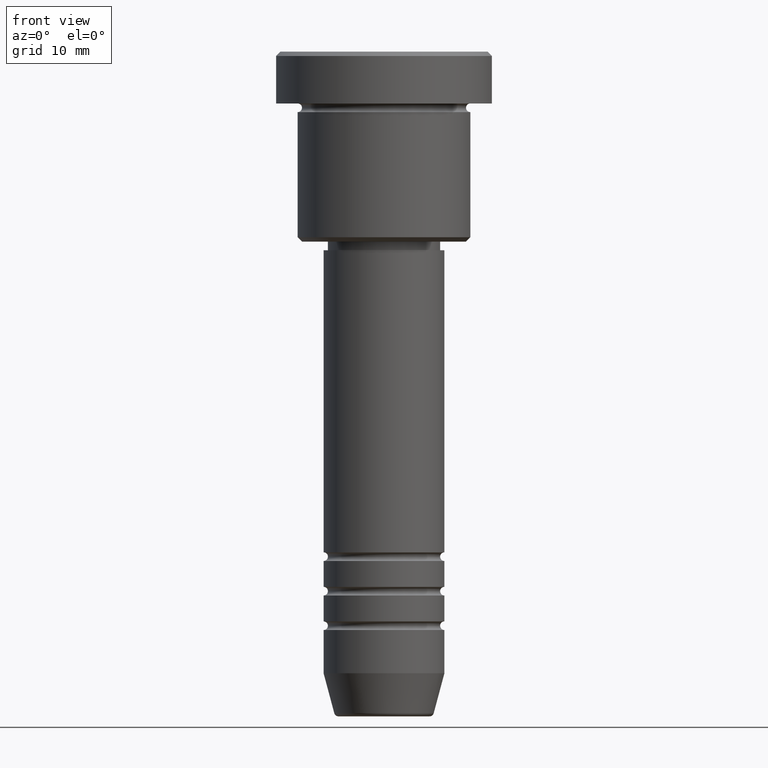
[diagram: clean part render]
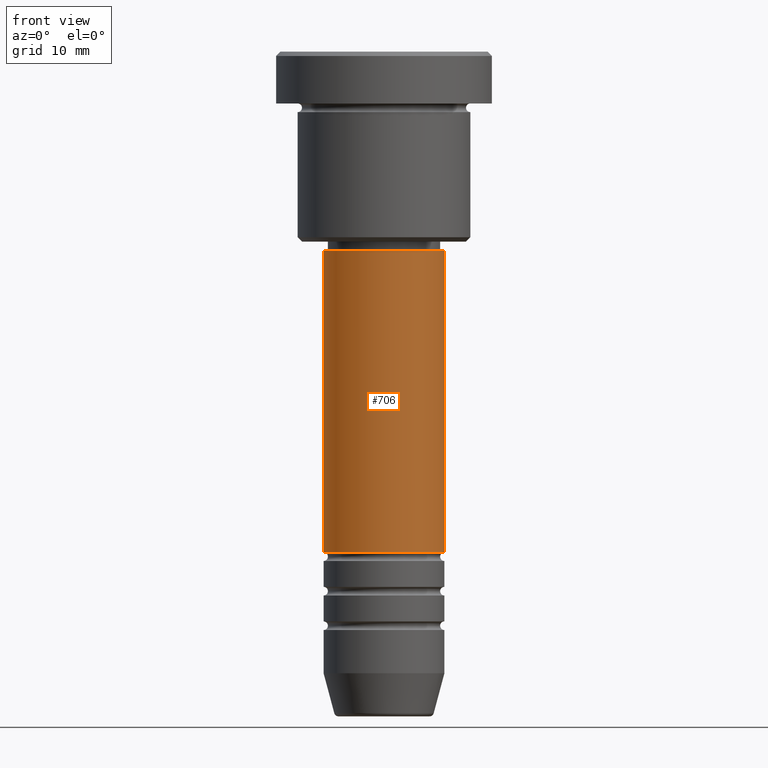
[diagram: same view with one face highlighted and labeled with its STEP entity id]
A machine part, front view. The second image highlights one B-rep face of the part: STEP entity #706.
In plain terms, the highlighted cylindrical surface (partial cylindrical patch) has radius 7 mm, axis along (-0, -0, 1).
Its self-contained STEP definition (entity closure, byte-faithful):
#1 = CARTESIAN_POINT ( 'NONE',  ( 7.000000000000000888, 0.000000000000000000, 0.000000000000000000 ) ) ;
#40 = DIRECTION ( 'NONE',  ( -0.000000000000000000, -0.000000000000000000, 1.000000000000000000 ) ) ;
#101 = DIRECTION ( 'NONE',  ( 1.000000000000000000, 0.000000000000000000, 0.000000000000000000 ) ) ;
#121 = VERTEX_POINT ( 'NONE', #891 ) ;
#127 = VERTEX_POINT ( 'NONE', #418 ) ;
#131 = AXIS2_PLACEMENT_3D ( 'NONE', #486, #216, #420 ) ;
#138 = CARTESIAN_POINT ( 'NONE',  ( -7.000000000000000888, 8.572527594031474176E-16, -23.00000000000002842 ) ) ;
#216 = DIRECTION ( 'NONE',  ( -0.000000000000000000, -0.000000000000000000, 1.000000000000000000 ) ) ;
#248 = AXIS2_PLACEMENT_3D ( 'NONE', #1004, #557, #101 ) ;
#266 = ORIENTED_EDGE ( 'NONE', *, *, #872, .F. ) ;
#282 = CARTESIAN_POINT ( 'NONE',  ( 7.000000000000000888, 0.000000000000000000, -57.99999999999990052 ) ) ;
#318 = EDGE_CURVE ( 'NONE', #127, #1047, #926, .T. ) ;
#349 = AXIS2_PLACEMENT_3D ( 'NONE', #1028, #40, #708 ) ;
#365 = CARTESIAN_POINT ( 'NONE',  ( -7.000000000000000888, 8.572527594031474176E-16, 0.000000000000000000 ) ) ;
#377 = CYLINDRICAL_SURFACE ( 'NONE', #248, 7.000000000000000888 ) ;
#418 = CARTESIAN_POINT ( 'NONE',  ( -7.000000000000000888, 8.572527594031474176E-16, -57.99999999999990052 ) ) ;
#420 = DIRECTION ( 'NONE',  ( 1.000000000000000000, 0.000000000000000000, 0.000000000000000000 ) ) ;
#429 = CIRCLE ( 'NONE', #131, 7.000000000000000888 ) ;
#454 = VERTEX_POINT ( 'NONE', #138 ) ;
#486 = CARTESIAN_POINT ( 'NONE',  ( 0.000000000000000000, 0.000000000000000000, -23.00000000000002842 ) ) ;
#490 = ORIENTED_EDGE ( 'NONE', *, *, #744, .F. ) ;
#557 = DIRECTION ( 'NONE',  ( -0.000000000000000000, -0.000000000000000000, 1.000000000000000000 ) ) ;
#652 = EDGE_LOOP ( 'NONE', ( #266, #1097, #949, #490 ) ) ;
#697 = VECTOR ( 'NONE', #816, 1000.000000000000000 ) ;
#706 = ADVANCED_FACE ( 'NONE', ( #937 ), #377, .T. ) ;
#708 = DIRECTION ( 'NONE',  ( 1.000000000000000000, 0.000000000000000000, 0.000000000000000000 ) ) ;
#744 = EDGE_CURVE ( 'NONE', #454, #121, #429, .T. ) ;
#816 = DIRECTION ( 'NONE',  ( -0.000000000000000000, -0.000000000000000000, 1.000000000000000000 ) ) ;
#872 = EDGE_CURVE ( 'NONE', #127, #454, #1087, .T. ) ;
#891 = CARTESIAN_POINT ( 'NONE',  ( 7.000000000000000888, 0.000000000000000000, -23.00000000000002842 ) ) ;
#926 = CIRCLE ( 'NONE', #349, 7.000000000000000888 ) ;
#937 = FACE_OUTER_BOUND ( 'NONE', #652, .T. ) ;
#949 = ORIENTED_EDGE ( 'NONE', *, *, #1034, .T. ) ;
#950 = LINE ( 'NONE', #1, #993 ) ;
#993 = VECTOR ( 'NONE', #1023, 1000.000000000000000 ) ;
#1004 = CARTESIAN_POINT ( 'NONE',  ( 0.000000000000000000, 0.000000000000000000, 0.000000000000000000 ) ) ;
#1023 = DIRECTION ( 'NONE',  ( -0.000000000000000000, -0.000000000000000000, 1.000000000000000000 ) ) ;
#1028 = CARTESIAN_POINT ( 'NONE',  ( 0.000000000000000000, 0.000000000000000000, -57.99999999999990052 ) ) ;
#1034 = EDGE_CURVE ( 'NONE', #1047, #121, #950, .T. ) ;
#1047 = VERTEX_POINT ( 'NONE', #282 ) ;
#1087 = LINE ( 'NONE', #365, #697 ) ;
#1097 = ORIENTED_EDGE ( 'NONE', *, *, #318, .T. ) ;